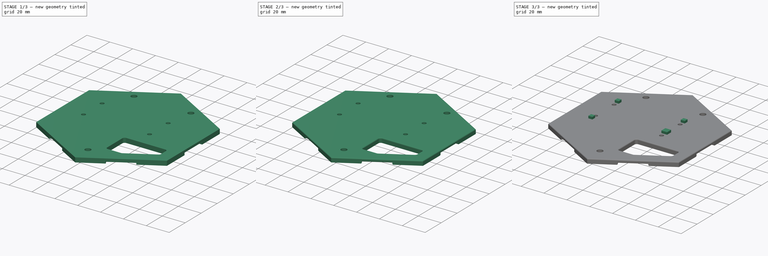
[diagram: build sequence overview — one tinted view per stage of 3, left to right]
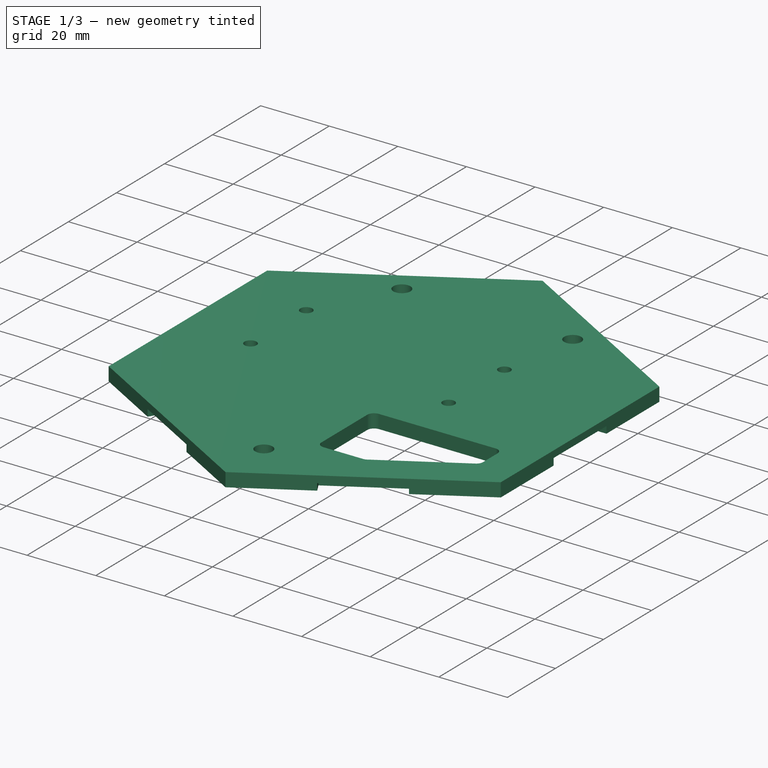
[diagram: stage 1 of 3 — iso view after this stage's code; geometry added in this stage tinted green]
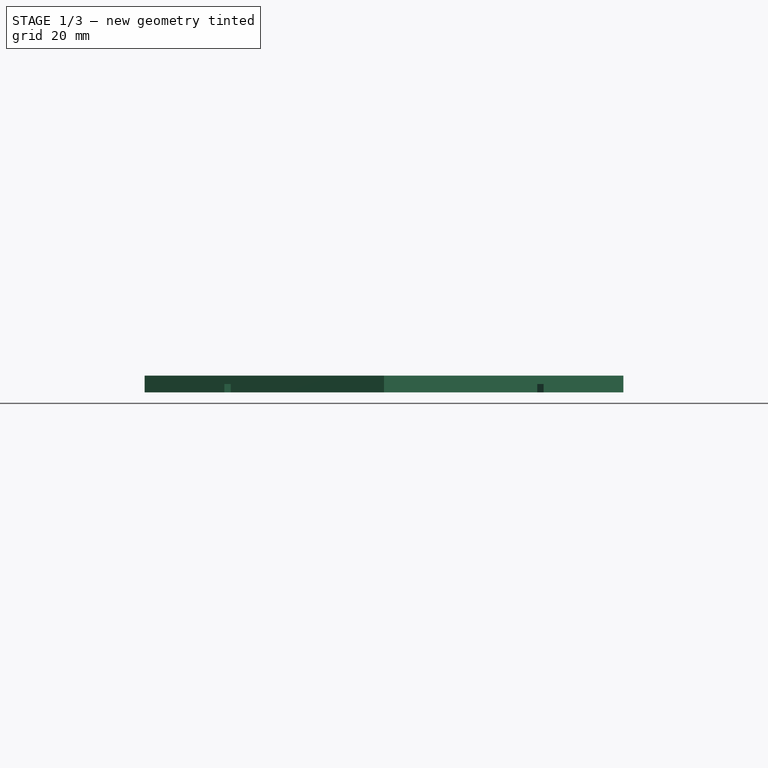
[diagram: stage 1 of 3 — front view after this stage's code; geometry added in this stage tinted green]
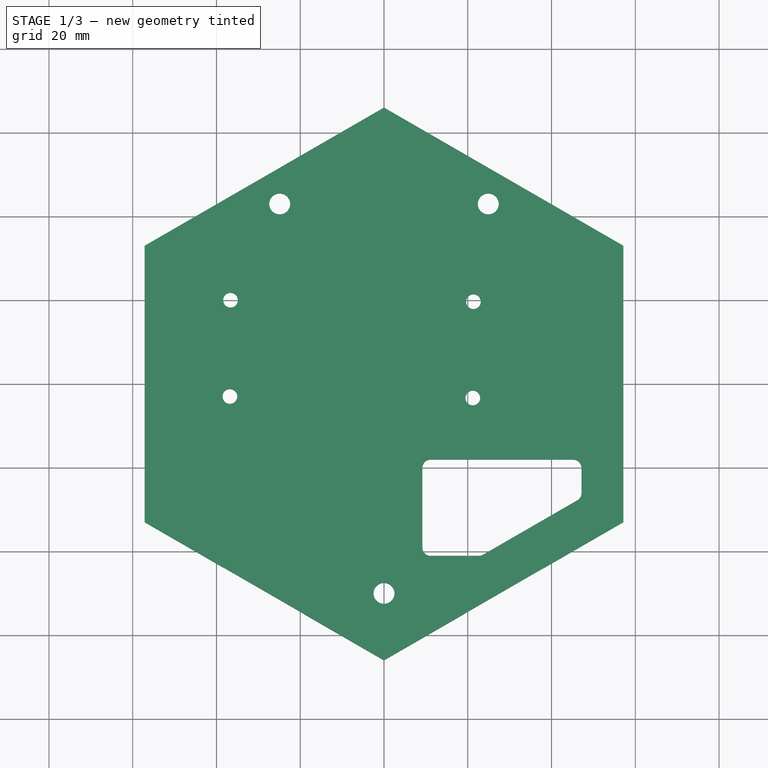
[diagram: stage 1 of 3 — top view after this stage's code; geometry added in this stage tinted green]
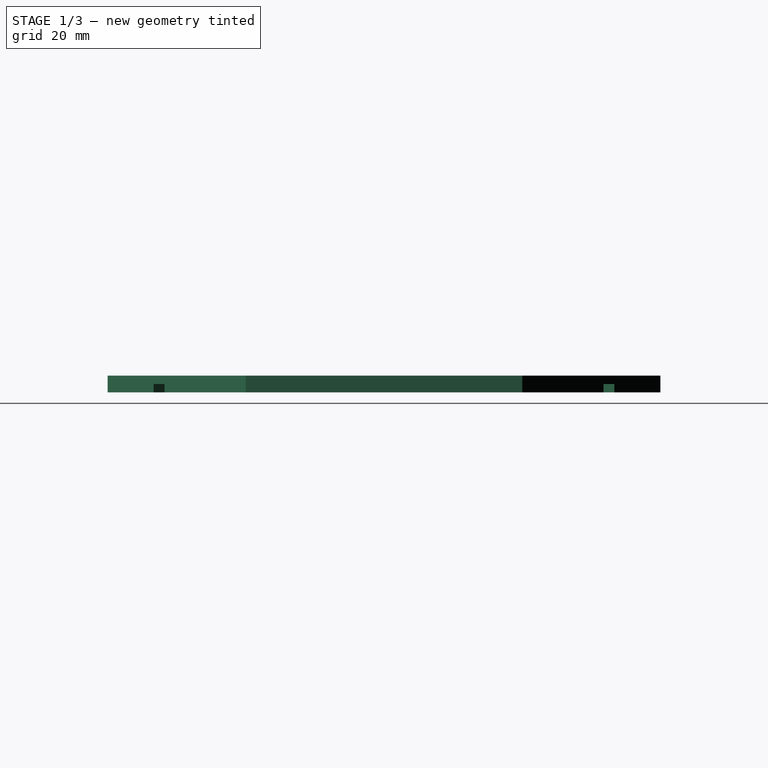
[diagram: stage 1 of 3 — right view after this stage's code; geometry added in this stage tinted green]
FCSTD DOCUMENT  (FreeCAD 0.20R)
Label: BaseOneSnap2HNuts_v2.11
License: All rights reserved
LicenseURL: http://en.wikipedia.org/wiki/All_rights_reserved
objects: Sketcher::SketchObject×3, PartDesign::Pad×2, PartDesign::Pocket×2, PartDesign::Fillet×1, Part::Part2DObjectPython×1, PartDesign::Body×1
note: 15 computed .brp shape members not serialized (recipe doc carries the construction recipe); baked Part::Feature solids carry a one-line shape summary decoded from their .brp

FEATURE [Sketcher::SketchObject] Sketch  label="backplate_Sketch"
  FullyConstrained = true
  MapMode = 5
  Support = -> [XY_Plane]
  expr: Constraints[21] = 115.3 - 1
  sketch-geometry (36):
    g0: LineSegment StartX=57.15 StartY=-32.9956 StartZ=0 EndX=57.15 EndY=32.9956 EndZ=0
    g1: LineSegment StartX=57.15 StartY=32.9956 StartZ=0 EndX=0 EndY=65.9911 EndZ=0
    g2: LineSegment StartX=0 StartY=65.9911 StartZ=0 EndX=-57.15 EndY=32.9956 EndZ=0
    g3: LineSegment StartX=-57.15 StartY=32.9956 StartZ=0 EndX=-57.15 EndY=-32.9956 EndZ=0
    g4: LineSegment StartX=-57.15 StartY=-32.9956 StartZ=0 EndX=0 EndY=-65.9911 EndZ=0
    g5: LineSegment StartX=0 StartY=-65.9911 StartZ=0 EndX=57.15 EndY=-32.9956 EndZ=0
    g6: Circle CenterX=0 CenterY=0 CenterZ=0 NormalX=0 NormalY=0 NormalZ=1 AngleXU=0 Radius=65.9911
    g7: LineSegment StartX=-57.15 StartY=32.9956 StartZ=0 EndX=0 EndY=-65.9911 EndZ=0
    g8: Circle CenterX=-24.9 CenterY=42.9911 CenterZ=0 NormalX=0 NormalY=0 NormalZ=1 AngleXU=0 Radius=2.5
    g9: Circle CenterX=24.9 CenterY=42.9911 CenterZ=0 NormalX=0 NormalY=0 NormalZ=1 AngleXU=0 Radius=2.5
    g10: Circle CenterX=0 CenterY=-50.0089 CenterZ=0 NormalX=0 NormalY=0 NormalZ=1 AngleXU=0 Radius=2.5
    g11: LineSegment StartX=-24.9 StartY=42.9911 StartZ=0 EndX=24.9 EndY=42.9911 EndZ=0
    g12: LineSegment StartX=9.15 StartY=-20.0577 StartZ=0 EndX=9.15 EndY=-39.0577 EndZ=0
    g13: LineSegment StartX=11.15 StartY=-41.0577 StartZ=0 EndX=22.65 EndY=-41.0577 EndZ=0
    g14: LineSegment StartX=23.65 StartY=-40.7898 StartZ=0 EndX=46.15 EndY=-27.7994 EndZ=0
    g15: LineSegment StartX=47.15 StartY=-26.0674 StartZ=0 EndX=47.15 EndY=-20.0577 EndZ=0
    g16: LineSegment StartX=45.15 StartY=-18.0577 StartZ=0 EndX=11.15 EndY=-18.0577 EndZ=0
    g17: LineSegment StartX=34.9 StartY=-34.2946 StartZ=0 EndX=39.9 EndY=-42.9549 EndZ=0
    g18: LineSegment StartX=47.15 StartY=-23.0626 StartZ=0 EndX=57.15 EndY=-23.0626 EndZ=0
    g19: ArcOfCircle CenterX=22.65 CenterY=-39.0577 CenterZ=0 NormalX=0 NormalY=0 NormalZ=1 AngleXU=0 Radius=2 StartAngle=4.71239 EndAngle=5.23599
    g20: ArcOfCircle CenterX=11.15 CenterY=-39.0577 CenterZ=0 NormalX=0 NormalY=0 NormalZ=1 AngleXU=0 Radius=2 StartAngle=3.14159 EndAngle=4.71239
    g21: ArcOfCircle CenterX=11.15 CenterY=-20.0577 CenterZ=0 NormalX=0 NormalY=0 NormalZ=1 AngleXU=0 Radius=2 StartAngle=1.5708 EndAngle=3.14159
    g22: ArcOfCircle CenterX=45.15 CenterY=-20.0577 CenterZ=0 NormalX=0 NormalY=0 NormalZ=1 AngleXU=0 Radius=2 StartAngle=0 EndAngle=1.5708
    g23: ArcOfCircle CenterX=45.15 CenterY=-26.0674 CenterZ=0 NormalX=0 NormalY=0 NormalZ=1 AngleXU=0 Radius=2 StartAngle=5.23599 EndAngle=6.28319
    g24: LineSegment StartX=11.15 StartY=-18.0577 StartZ=0 EndX=11.15 EndY=-20.0577 EndZ=0
    g25: LineSegment StartX=11.15 StartY=-39.0577 StartZ=0 EndX=11.15 EndY=-41.0577 EndZ=0
    g26: LineSegment StartX=47.15 StartY=-26.0674 StartZ=0 EndX=45.15 EndY=-26.0674 EndZ=0
    g27: LineSegment StartX=45.15 StartY=-20.0577 StartZ=0 EndX=45.15 EndY=-18.0577 EndZ=0
    g28: LineSegment StartX=22.65 StartY=-39.0577 StartZ=0 EndX=22.65 EndY=-41.0577 EndZ=0
    g29: Circle CenterX=-36.65 CenterY=19.9911 CenterZ=0 NormalX=0 NormalY=0 NormalZ=1 AngleXU=0 Radius=1.75
    g30: Circle CenterX=21.3489 CenterY=19.6311 CenterZ=0 NormalX=0 NormalY=0 NormalZ=1 AngleXU=0 Radius=1.75
    g31: LineSegment StartX=-36.65 StartY=19.9911 StartZ=0 EndX=21.3489 EndY=19.6311 EndZ=0
    g32: Circle CenterX=-36.7928 CenterY=-3.00842 CenterZ=0 NormalX=0 NormalY=0 NormalZ=1 AngleXU=0 Radius=1.75
    g33: LineSegment StartX=-36.65 StartY=19.9911 StartZ=0 EndX=-36.7928 EndY=-3.00842 EndZ=0
    g34: Circle CenterX=21.2061 CenterY=-3.36842 CenterZ=0 NormalX=0 NormalY=0 NormalZ=1 AngleXU=0 Radius=1.75
    g35: LineSegment StartX=-36.7928 StartY=-3.00842 StartZ=0 EndX=21.2061 EndY=-3.36842 EndZ=0
  constraints (87):
    c: Coincident(g0,g1)
    c: Coincident(g1,g2)
    c: Coincident(g2,g3)
    c: Coincident(g3,g4)
    c: Coincident(g4,g5)
    c: Coincident(g5,g0)
    c: Equal(g0, g1-g5) x5
    c: PointOnObject(g0,g6)
    c: PointOnObject(g1,g6)
    c: PointOnObject(g2,g6)
    c: PointOnObject(g3,g6)
    c: PointOnObject(g4,g6)
    c: PointOnObject(g5,g6)
    c: Coincident(g6,g-1)
    c: PointOnObject(g4,g-2)
    c: Coincident(g7,g2)
    c: Coincident(g7,g4)
    c: Distance(g7) = 114.3
    c: PointOnObject(g10,g-2)
    c: Equal(g8,g10)
    c: Equal(g8,g9)
    c: Diameter(g8) = 5
    c: DistanceY(g9,g1) = 23
    c: Coincident(g11,g8)
    c: Coincident(g11,g9)
    c: DistanceY(g10,g9) = 93
    c: DistanceX(g8,g9) = 49.8
    c: Symmetric(g8,g9,g-2)
    c: Vertical(g12)
    c: Horizontal(g13)
    c: Vertical(g15)
    c: Horizontal(g16)
    c: Parallel(g14,g5)
    c: PointOnObject(g17,g5)
    c: Perpendicular(g5,g17)
    c: Distance(g17) = 10
    c: PointOnObject(g18,g0)
    c: Horizontal(g18)
    c: DistanceX(g18,g18) = 10
    c: Tangent(g14,g19) = -1.5708
    c: Tangent(g13,g19) = -1.5708
    c: Tangent(g13,g20) = -1.5708
    c: Tangent(g12,g20) = -1.5708
    c: Tangent(g12,g21) = -1.5708
    c: Tangent(g16,g21) = -1.5708
    c: Tangent(g16,g22) = -1.5708
    c: Tangent(g15,g22) = -1.5708
    c: Tangent(g15,g23) = -1.5708
    c: Tangent(g14,g23) = -1.5708
    c: Coincident(g24,g16)
    c: Coincident(g24,g21)
    c: Coincident(g25,g20)
    c: Coincident(g25,g13)
    c: Coincident(g26,g15)
    c: Coincident(g26,g23)
    c: Coincident(g27,g22)
    c: Coincident(g27,g16)
    c: Equal(g26,g27)
    c: Equal(g27,g25)
    c: Equal(g25,g24)
    c: Distance(g24) = 2
    c: DistanceY(g13,g16) = 23
    c: DistanceX(g12,g15) = 38
    c: Coincident(g28,g19)
    c: Coincident(g28,g13)
    c: Equal(g28,g25)
    c: DistanceX(g13,g13) = 11.5
    c: Symmetric(g14,g14,g17)
    c: Symmetric(g15,g15,g18)
    c: Diameter(g29) = 3.5
    c: DistanceX(g2,g29) = 20.5
    c: DistanceY(g29,g1) = 46
    c: Diameter(g30) = 3.5
    c: Coincident(g29,g31)
    c: Coincident(g30,g31)
    c: Distance(g31) = 58
    c: Angle(g31) = -0.00620691
    c: Diameter(g32) = 3.5
    c: Coincident(g29,g33)
    c: Coincident(g32,g33)
    c: Distance(g33) = 23
    c: Perpendicular(g33,g31)
    c: Diameter(g34) = 3.5
    c: Coincident(g32,g35)
    c: Coincident(g34,g35)
    c: Equal(g31,g35)
    c: Parallel(g35,g31)
FEATURE [PartDesign::Pad] Pad  label="backplate_Pad"
  Direction = (0,0,1)
  Length = 4
  Length2 = 10
  Profile = -> Sketch
  Type = 0
FEATURE [Sketcher::SketchObject] Sketch001  label="rear_engraving_Sketch"
  ExternalGeometry = -> [Pad,Sketch]
  FullyConstrained = true
  MapMode = 5
  Placement = pos=(0,0,0) rot=(1,0,0;3.14159rad)
  Support = -> [Pad]
  sketch-geometry (113):
    g0: LineSegment StartX=-57.15 StartY=-11 StartZ=0 EndX=-54.15 EndY=-11 EndZ=0
    g1: LineSegment StartX=-54.15 StartY=-11 StartZ=0 EndX=-54.15 EndY=11 EndZ=0
    g2: LineSegment StartX=-54.15 StartY=11 StartZ=0 EndX=-57.15 EndY=11 EndZ=0
    g3: LineSegment StartX=-57.15 StartY=11 StartZ=0 EndX=-57.15 EndY=-11 EndZ=0
    g4: LineSegment StartX=54.15 StartY=-11 StartZ=0 EndX=57.15 EndY=-11 EndZ=0
    g5: LineSegment StartX=57.15 StartY=-11 StartZ=0 EndX=57.15 EndY=11 EndZ=0
    g6: LineSegment StartX=57.15 StartY=11 StartZ=0 EndX=54.15 EndY=11 EndZ=0
    g7: LineSegment StartX=54.15 StartY=11 StartZ=0 EndX=54.15 EndY=-11 EndZ=0
    g8: LineSegment StartX=36.6013 StartY=41.3953 StartZ=0 EndX=38.1013 EndY=43.9934 EndZ=0
    g9: LineSegment StartX=38.1013 StartY=43.9934 StartZ=0 EndX=19.0487 EndY=54.9934 EndZ=0
    g10: LineSegment StartX=19.0487 StartY=54.9934 StartZ=0 EndX=17.5487 EndY=52.3953 EndZ=0
    g11: LineSegment StartX=17.5487 StartY=52.3953 StartZ=0 EndX=36.6013 EndY=41.3953 EndZ=0
    g12: LineSegment StartX=0 StartY=65.9911 StartZ=0 EndX=19.0487 EndY=54.9934 EndZ=0
    g13: LineSegment StartX=38.1013 StartY=43.9934 StartZ=0 EndX=57.15 EndY=32.9956 EndZ=0
    g14: LineSegment StartX=-38.1013 StartY=43.9934 StartZ=0 EndX=-19.0487 EndY=54.9934 EndZ=0
    g15: LineSegment StartX=-19.0487 StartY=54.9934 StartZ=0 EndX=-17.5487 EndY=52.3953 EndZ=0
    g16: LineSegment StartX=-17.5487 StartY=52.3953 StartZ=0 EndX=-36.6013 EndY=41.3953 EndZ=0
    g17: LineSegment StartX=-36.6013 StartY=41.3953 StartZ=0 EndX=-38.1013 EndY=43.9934 EndZ=0
    g18: LineSegment StartX=-38.1013 StartY=-43.9934 StartZ=0 EndX=-19.0487 EndY=-54.9934 EndZ=0
    g19: LineSegment StartX=-19.0487 StartY=-54.9934 StartZ=0 EndX=-17.5487 EndY=-52.3953 EndZ=0
    g20: LineSegment StartX=-17.5487 StartY=-52.3953 StartZ=0 EndX=-36.6013 EndY=-41.3953 EndZ=0
    g21: LineSegment StartX=-36.6013 StartY=-41.3953 StartZ=0 EndX=-38.1013 EndY=-43.9934 EndZ=0
    g22: LineSegment StartX=19.0487 StartY=-54.9934 StartZ=0 EndX=38.1013 EndY=-43.9934 EndZ=0
    g23: LineSegment StartX=38.1013 StartY=-43.9934 StartZ=0 EndX=36.6013 EndY=-41.3953 EndZ=0
    g24: LineSegment StartX=36.6013 StartY=-41.3953 StartZ=0 EndX=17.5487 EndY=-52.3953 EndZ=0
    g25: LineSegment StartX=17.5487 StartY=-52.3953 StartZ=0 EndX=19.0487 EndY=-54.9934 EndZ=0
    g26: LineSegment StartX=-57.15 StartY=-32.9956 StartZ=0 EndX=-38.1013 EndY=-43.9934 EndZ=0
    g27: LineSegment StartX=-19.0487 StartY=-54.9934 StartZ=0 EndX=-7.1e-15 EndY=-65.9911 EndZ=0
    g28: LineSegment StartX=-7.1e-15 StartY=-65.9911 StartZ=0 EndX=19.0487 EndY=-54.9934 EndZ=0
    g29: LineSegment StartX=38.1013 StartY=-43.9934 StartZ=0 EndX=57.15 EndY=-32.9956 EndZ=0
    g30: LineSegment StartX=-57.15 StartY=32.9956 StartZ=0 EndX=-38.1013 EndY=43.9934 EndZ=0
    g31: LineSegment StartX=-19.0487 StartY=54.9934 StartZ=0 EndX=0 EndY=65.9911 EndZ=0
    g32: LineSegment StartX=17 StartY=-48.4911 StartZ=0 EndX=14 EndY=-40.4911 EndZ=0
    g33: LineSegment StartX=14 StartY=-40.4911 StartZ=0 EndX=12 EndY=-40.4911 EndZ=0
    g34: LineSegment StartX=12 StartY=-40.4911 StartZ=0 EndX=10 EndY=-45.8245 EndZ=0
    g35: LineSegment StartX=10 StartY=-45.8245 StartZ=0 EndX=8 EndY=-40.4911 EndZ=0
    g36: LineSegment StartX=8 StartY=-40.4911 StartZ=0 EndX=6 EndY=-40.4911 EndZ=0
    g37: LineSegment StartX=6 StartY=-40.4911 StartZ=0 EndX=3 EndY=-48.4911 EndZ=0
    g38: LineSegment StartX=3 StartY=-48.4911 StartZ=0 EndX=5 EndY=-48.4911 EndZ=0
    g39: LineSegment StartX=5 StartY=-48.4911 StartZ=0 EndX=7 EndY=-43.1578 EndZ=0
    g40: LineSegment StartX=7 StartY=-43.1578 StartZ=0 EndX=9 EndY=-48.4911 EndZ=0
    g41: LineSegment StartX=9 StartY=-48.4911 StartZ=0 EndX=11 EndY=-48.4911 EndZ=0
    g42: LineSegment StartX=11 StartY=-48.4911 StartZ=0 EndX=13 EndY=-43.1578 EndZ=0
    g43: LineSegment StartX=13 StartY=-43.1578 StartZ=0 EndX=15 EndY=-48.4911 EndZ=0
    g44: LineSegment StartX=15 StartY=-48.4911 StartZ=0 EndX=17 EndY=-48.4911 EndZ=0
    g45: LineSegment StartX=4 StartY=-40.4911 StartZ=0 EndX=1 EndY=-48.4911 EndZ=0
    g46: LineSegment StartX=1 StartY=-48.4911 StartZ=0 EndX=-1 EndY=-48.4911 EndZ=0
    g47: LineSegment StartX=-1 StartY=-48.4911 StartZ=0 EndX=-4 EndY=-40.4911 EndZ=0
    g48: LineSegment StartX=-4 StartY=-40.4911 StartZ=0 EndX=-2 EndY=-40.4911 EndZ=0
    g49: LineSegment StartX=-2 StartY=-40.4911 StartZ=0 EndX=-1.47331 EndY=-41.8956 EndZ=0
    g50: LineSegment StartX=-1.47331 StartY=-41.8956 StartZ=0 EndX=1.47331 EndY=-41.8956 EndZ=0
    g51: LineSegment StartX=1.47331 StartY=-41.8956 StartZ=0 EndX=2 EndY=-40.4911 EndZ=0
    g52: LineSegment StartX=2 StartY=-40.4911 StartZ=0 EndX=4 EndY=-40.4911 EndZ=0
    g53: LineSegment StartX=0 StartY=-45.8245 StartZ=0 EndX=0.723315 EndY=-43.8956 EndZ=0
    g54: LineSegment StartX=0.723315 StartY=-43.8956 StartZ=0 EndX=-0.723315 EndY=-43.8956 EndZ=0
    g55: LineSegment StartX=-0.723315 StartY=-43.8956 StartZ=0 EndX=0 EndY=-45.8245 EndZ=0
    g56: LineSegment StartX=-6 StartY=-48.4911 StartZ=0 EndX=-6 EndY=-40.4911 EndZ=0
    g57: LineSegment StartX=-6 StartY=-40.4911 StartZ=0 EndX=-11.5 EndY=-40.4911 EndZ=0
    g58: LineSegment StartX=-11.5 StartY=-40.4911 StartZ=0 EndX=-11.5 EndY=-42.4911 EndZ=0
    g59: LineSegment StartX=-11.5 StartY=-42.4911 StartZ=0 EndX=-8 EndY=-42.4911 EndZ=0
    g60: LineSegment StartX=-8 StartY=-42.4911 StartZ=0 EndX=-8 EndY=-48.4911 EndZ=0
    g61: LineSegment StartX=-8 StartY=-48.4911 StartZ=0 EndX=-6 EndY=-48.4911 EndZ=0
    g62: LineSegment StartX=3 StartY=-48.4911 StartZ=0 EndX=1 EndY=-48.4911 EndZ=0
    g63: LineSegment StartX=-4 StartY=-40.4911 StartZ=0 EndX=-6 EndY=-40.4911 EndZ=0
    g64: LineSegment StartX=-13.5 StartY=-48.4911 StartZ=0 EndX=-13.5 EndY=-40.4911 EndZ=0
    g65: LineSegment StartX=-13.5 StartY=-40.4911 StartZ=0 EndX=-19 EndY=-40.4911 EndZ=0
    g66: LineSegment StartX=-19 StartY=-40.4911 StartZ=0 EndX=-19 EndY=-42.4911 EndZ=0
    g67: LineSegment StartX=-19 StartY=-42.4911 StartZ=0 EndX=-15.5 EndY=-42.4911 EndZ=0
    g68: LineSegment StartX=-15.5 StartY=-42.4911 StartZ=0 EndX=-15.5 EndY=-48.4911 EndZ=0
    g69: LineSegment StartX=-15.5 StartY=-48.4911 StartZ=0 EndX=-13.5 EndY=-48.4911 EndZ=0
    g70: LineSegment StartX=-11.5 StartY=-40.4911 StartZ=0 EndX=-13.5 EndY=-40.4911 EndZ=0
    g71: LineSegment StartX=15 StartY=-48.4911 StartZ=0 EndX=11 EndY=-48.4911 EndZ=0
    g72: LineSegment StartX=12 StartY=-40.4911 StartZ=0 EndX=8 EndY=-40.4911 EndZ=0
    g73: LineSegment StartX=9 StartY=-48.4911 StartZ=0 EndX=5 EndY=-48.4911 EndZ=0
    g74: LineSegment StartX=24.9 StartY=-42.9911 StartZ=0 EndX=24.9 EndY=-40.4911 EndZ=0
    g75: LineSegment StartX=0.723315 StartY=-43.8956 StartZ=0 EndX=0.723315 EndY=-41.8956 EndZ=0
    g76: LineSegment StartX=10 StartY=-45.8245 StartZ=0 EndX=10 EndY=-40.4911 EndZ=0
    g77: LineSegment StartX=8.75342 StartY=-42.5003 StartZ=0 EndX=7 EndY=-43.1578 EndZ=0
    g78: LineSegment StartX=13 StartY=-43.1578 StartZ=0 EndX=11.2466 EndY=-42.5003 EndZ=0
    g79: LineSegment StartX=14.7534 StartY=-42.5003 StartZ=0 EndX=13 EndY=-43.1578 EndZ=0
    g80: LineSegment StartX=7 StartY=-43.1578 StartZ=0 EndX=5.24658 EndY=-42.5003 EndZ=0
    g81: LineSegment StartX=-35.2628 StartY=5.65842 StartZ=0 EndX=-38.3227 EndY=5.65842 EndZ=0
    g82: LineSegment StartX=-38.3227 StartY=5.65842 StartZ=0 EndX=-39.8527 EndY=3.00842 EndZ=0
    g83: LineSegment StartX=-39.8527 StartY=3.00842 StartZ=0 EndX=-38.3227 EndY=0.358421 EndZ=0
    g84: LineSegment StartX=-38.3227 StartY=0.358421 StartZ=0 EndX=-35.2628 EndY=0.358421 EndZ=0
    g85: LineSegment StartX=-35.2628 StartY=0.358421 StartZ=0 EndX=-33.7328 EndY=3.00842 EndZ=0
    g86: LineSegment StartX=-33.7328 StartY=3.00842 StartZ=0 EndX=-35.2628 EndY=5.65842 EndZ=0
    g87: Circle CenterX=-36.7928 CenterY=3.00842 CenterZ=0 NormalX=0 NormalY=0 NormalZ=1 AngleXU=0 Radius=3.05996
    g88: LineSegment StartX=18.1462 StartY=3.36842 StartZ=0 EndX=19.6761 EndY=0.71842 EndZ=0
    g89: LineSegment StartX=19.6761 StartY=0.71842 StartZ=0 EndX=22.7361 EndY=0.71842 EndZ=0
    g90: LineSegment StartX=22.7361 StartY=0.71842 StartZ=0 EndX=24.2661 EndY=3.36842 EndZ=0
    g91: LineSegment StartX=24.2661 StartY=3.36842 StartZ=0 EndX=22.7361 EndY=6.01842 EndZ=0
    g92: LineSegment StartX=22.7361 StartY=6.01842 StartZ=0 EndX=19.6761 EndY=6.01842 EndZ=0
    g93: LineSegment StartX=19.6761 StartY=6.01842 StartZ=0 EndX=18.1462 EndY=3.36842 EndZ=0
    g94: Circle CenterX=21.2061 CenterY=3.36842 CenterZ=0 NormalX=0 NormalY=0 NormalZ=1 AngleXU=0 Radius=3.05996
    g95: LineSegment StartX=18.2889 StartY=-19.6311 StartZ=0 EndX=19.8189 EndY=-22.2811 EndZ=0
    g96: LineSegment StartX=19.8189 StartY=-22.2811 StartZ=0 EndX=22.8789 EndY=-22.2811 EndZ=0
    g97: LineSegment StartX=22.8789 StartY=-22.2811 StartZ=0 EndX=24.4088 EndY=-19.6311 EndZ=0
    g98: LineSegment StartX=24.4088 StartY=-19.6311 StartZ=0 EndX=22.8789 EndY=-16.9811 EndZ=0
    g99: LineSegment StartX=22.8789 StartY=-16.9811 StartZ=0 EndX=19.8189 EndY=-16.9811 EndZ=0
    g100: LineSegment StartX=19.8189 StartY=-16.9811 StartZ=0 EndX=18.2889 EndY=-19.6311 EndZ=0
    g101: Circle CenterX=21.3489 CenterY=-19.6311 CenterZ=0 NormalX=0 NormalY=0 NormalZ=1 AngleXU=0 Radius=3.05996
    g102: LineSegment StartX=-39.71 StartY=-19.9911 StartZ=0 EndX=-38.18 EndY=-22.6411 EndZ=0
    g103: LineSegment StartX=-38.18 StartY=-22.6411 StartZ=0 EndX=-35.12 EndY=-22.6411 EndZ=0
    g104: LineSegment StartX=-35.12 StartY=-22.6411 StartZ=0 EndX=-33.59 EndY=-19.9911 EndZ=0
    g105: LineSegment StartX=-33.59 StartY=-19.9911 StartZ=0 EndX=-35.12 EndY=-17.3411 EndZ=0
    g106: LineSegment StartX=-35.12 StartY=-17.3411 StartZ=0 EndX=-38.18 EndY=-17.3411 EndZ=0
    g107: LineSegment StartX=-38.18 StartY=-17.3411 StartZ=0 EndX=-39.71 EndY=-19.9911 EndZ=0
    g108: Circle CenterX=-36.65 CenterY=-19.9911 CenterZ=0 NormalX=0 NormalY=0 NormalZ=1 AngleXU=0 Radius=3.05996
    g109: LineSegment StartX=-39.71 StartY=-19.9911 StartZ=0 EndX=-35.12 EndY=-17.3411 EndZ=0
    g110: LineSegment StartX=-38.3227 StartY=0.358421 StartZ=0 EndX=-33.7328 EndY=3.00842 EndZ=0
    g111: LineSegment StartX=19.6761 StartY=0.71842 StartZ=0 EndX=24.2661 EndY=3.36842 EndZ=0
    g112: LineSegment StartX=19.8189 StartY=-22.2811 StartZ=0 EndX=24.4088 EndY=-19.6311 EndZ=0
  constraints (297):
    c: Coincident(g0,g1)
    c: Coincident(g1,g2)
    c: Coincident(g2,g3)
    c: Coincident(g3,g0)
    c: Horizontal(g0)
    c: Horizontal(g2)
    c: Vertical(g3)
    c: PointOnObject(g0,g-4)
    c: Symmetric(g1,g0,g-1)
    c: DistanceX(g2,g2) = 3
    c: DistanceY(g1,g1) = 22
    c: Coincident(g4,g5)
    c: Coincident(g5,g6)
    c: Coincident(g6,g7)
    c: Coincident(g7,g4)
    c: Horizontal(g4)
    c: Horizontal(g6)
    c: Vertical(g7)
    c: Equal(g2,g6) = 3
    c: Equal(g1,g5) = 22
    c: PointOnObject(g4,g-7)
    c: Symmetric(g4,g5,g-1)
    c: Coincident(g8,g9)
    c: Coincident(g9,g10)
    c: Coincident(g10,g11)
    c: PointOnObject(g8,g-5)
    c: PointOnObject(g9,g-5)
    c: Coincident(g11,g8)
    c: Parallel(g9,g11)
    c: Parallel(g10,g8)
    c: Perpendicular(g-5,g10)
    c: Coincident(g12,g-6)
    c: Coincident(g12,g9)
    c: Coincident(g13,g8)
    c: Coincident(g13,g-7)
    c: Equal(g13,g12)
    c: Equal(g11,g7)
    c: Equal(g8,g6)
    c: PointOnObject(g14,g-6)
    c: PointOnObject(g14,g-6)
    c: Coincident(g14,g15)
    c: Coincident(g15,g16)
    c: Coincident(g16,g17)
    c: Coincident(g17,g14)
    c: PointOnObject(g18,g-3)
    c: PointOnObject(g18,g-3)
    c: Coincident(g18,g19)
    c: Coincident(g19,g20)
    c: Coincident(g20,g21)
    c: Coincident(g21,g18)
    c: PointOnObject(g22,g-8)
    c: PointOnObject(g22,g-8)
    c: Coincident(g22,g23)
    c: Coincident(g23,g24)
    c: Coincident(g24,g25)
    c: Coincident(g25,g22)
    c: Coincident(g26,g-4)
    c: Coincident(g26,g18)
    c: Coincident(g27,g18)
    c: Coincident(g27,g-8)
    c: Coincident(g28,g27)
    c: Coincident(g28,g22)
    c: Coincident(g29,g22)
    c: Coincident(g29,g-8)
    c: Coincident(g30,g-6)
    c: Coincident(g30,g14)
    c: Coincident(g31,g14)
    c: Coincident(g31,g12)
    c: Equal(g31,g30)
    c: Equal(g26,g27)
    c: Equal(g28,g29)
    c: Equal(g11,g16)
    c: Equal(g15,g10)
    c: Parallel(g17,g15)
    c: Parallel(g14,g16)
    c: Perpendicular(g15,g14)
    c: Parallel(g21,g19)
    c: Parallel(g20,g18)
    c: Perpendicular(g27,g19)
    c: Perpendicular(g28,g25)
    c: Parallel(g23,g25)
    c: Parallel(g24,g22)
    c: Equal(g0,g21)
    c: Equal(g19,g25)
    c: Equal(g20,g24)
    c: Equal(g24,g7)
    c: Coincident(g32,g33)
    c: Horizontal(g33)
    c: Coincident(g33,g34)
    c: Coincident(g34,g35)
    c: Coincident(g35,g36)
    c: Coincident(g36,g37)
    c: Coincident(g37,g38)
    c: Horizontal(g38)
    c: Coincident(g38,g39)
    c: Coincident(g39,g40)
    c: Coincident(g40,g41)
    c: Horizontal(g41)
    c: Coincident(g41,g42)
    c: Coincident(g42,g43)
    c: Coincident(g43,g44)
    c: Coincident(g44,g32)
    c: Coincident(g45,g46)
    c: Coincident(g46,g47)
    c: Coincident(g47,g48)
    c: Horizontal(g48)
    c: Coincident(g48,g49)
    c: Coincident(g49,g50)
    c: Coincident(g50,g51)
    c: Coincident(g51,g52)
    c: Coincident(g52,g45)
    c: Coincident(g53,g54)
    c: Coincident(g54,g55)
    c: Coincident(g55,g53)
    c: Vertical(g56)
    c: Coincident(g56,g57)
    c: Horizontal(g57)
    c: Coincident(g57,g58)
    c: Vertical(g58)
    c: Coincident(g58,g59)
    c: Horizontal(g59)
    c: Coincident(g59,g60)
    c: Coincident(g60,g61)
    c: Coincident(g61,g56)
    c: Horizontal(g44)
    c: Horizontal(g36)
    c: Horizontal(g52)
    c: Horizontal(g46)
    c: Horizontal(g61)
    c: Horizontal(g54)
    c: Vertical(g60)
    c: Parallel(g32,g43)
    c: Parallel(g39,g37)
    c: Parallel(g35,g40)
    c: Parallel(g42,g34)
    c: Parallel(g45,g51)
    c: Parallel(g51,g53)
    c: Parallel(g55,g49)
    c: Parallel(g49,g47)
    c: PointOnObject(g43,g41)
    c: PointOnObject(g38,g41)
    c: PointOnObject(g45,g38)
    c: PointOnObject(g56,g38)
    c: PointOnObject(g33,g36)
    c: PointOnObject(g45,g36)
    c: PointOnObject(g48,g52)
    c: PointOnObject(g56,g48)
    c: Equal(g44,g33)
    c: Equal(g33,g41)
    c: Equal(g41,g36)
    c: Equal(g36,g38)
    c: Equal(g38,g52)
    c: Equal(g52,g48)
    c: Equal(g48,g46)
    c: Equal(g46,g61)
    c: Equal(g61,g58)
    c: Distance(g44) = 2
    c: Coincident(g62,g37)
    c: Coincident(g62,g45)
    c: Coincident(g63,g47)
    c: Coincident(g63,g56)
    c: Vertical(g64)
    c: Coincident(g64,g65)
    c: Horizontal(g65)
    c: Coincident(g65,g66)
    c: Vertical(g66)
    c: Coincident(g66,g67)
    c: Horizontal(g67)
    c: Coincident(g67,g68)
    c: Coincident(g68,g69)
    c: Coincident(g69,g64)
    c: Horizontal(g69)
    c: Vertical(g68)
    c: Equal(g69,g66)
    c: Coincident(g70,g57)
    c: Coincident(g70,g64)
    c: Horizontal(g70)
    c: Equal(g63,g70)
    c: Equal(g70,g62)
    c: Coincident(g71,g43)
    c: Coincident(g71,g41)
    c: Coincident(g72,g33)
    c: Coincident(g72,g35)
    c: Coincident(g73,g40)
    c: Coincident(g73,g38)
    c: Equal(g73,g71)
    c: Equal(g71,g72)
    c: Parallel(g37,g45)
    c: PointOnObject(g53,g51)
    c: PointOnObject(g54,g49)
    c: Equal(g58,g66)
    c: PointOnObject(g64,g61)
    c: DistanceY(g32,g32) = 8
    c: Equal(g57,g65)
    c: PointOnObject(g53,g-2)
    c: Symmetric(g49,g50,g-2)
    c: Coincident(g74,g-9)
    c: PointOnObject(g74,g-9)
    c: Vertical(g74)
    c: PointOnObject(g74,g33)
    c: Coincident(g75,g53)
    c: PointOnObject(g75,g50)
    c: Vertical(g75)
    c: Equal(g75,g52)
    c: Parallel(g34,g37)
    c: Coincident(g76,g34)
    c: Vertical(g76)
    c: Symmetric(g35,g33,g76)
    c: DistanceX(g62,g62) = 2
    c: PointOnObject(g77,g35)
    c: PointOnObject(g78,g34)
    c: PointOnObject(g79,g32)
    c: PointOnObject(g80,g37)
    c: Equal(g77,g78)
    c: Equal(g78,g80)
    c: Perpendicular(g32,g79)
    c: Perpendicular(g39,g80)
    c: Perpendicular(g40,g77)
    c: Coincident(g78,g42)
    c: Coincident(g79,g42)
    c: Coincident(g77,g39)
    c: Coincident(g80,g39)
    c: DistanceX(g73,g73) = 4
    c: Distance(g59) = 3.5
    c: Distance(g51) = 1.5
    c: Coincident(g81,g82)
    c: Coincident(g82,g83)
    c: Coincident(g83,g84)
    c: Coincident(g84,g85)
    c: Coincident(g85,g86)
    c: Coincident(g86,g81)
    c: Equal(g81, g82-g86) x5
    c: PointOnObject(g81,g87)
    c: PointOnObject(g82,g87)
    c: PointOnObject(g83,g87)
    c: PointOnObject(g84,g87)
    c: PointOnObject(g85,g87)
    c: PointOnObject(g86,g87)
    c: Coincident(g87,g-10)
    c: Horizontal(g81)
    c: Coincident(g88,g89)
    c: Coincident(g89,g90)
    c: Coincident(g90,g91)
    c: Coincident(g91,g92)
    c: Coincident(g92,g93)
    c: Coincident(g93,g88)
    c: Equal(g88, g89-g93) x5
    c: PointOnObject(g88,g94)
    c: PointOnObject(g89,g94)
    c: PointOnObject(g90,g94)
    c: PointOnObject(g91,g94)
    c: PointOnObject(g92,g94)
    c: PointOnObject(g93,g94)
    c: Coincident(g94,g-13)
    c: Coincident(g95,g96)
    c: Coincident(g96,g97)
    c: Coincident(g97,g98)
    c: Coincident(g98,g99)
    c: Coincident(g99,g100)
    c: Coincident(g100,g95)
    c: Equal(g95, g96-g100) x5
    c: PointOnObject(g95,g101)
    c: PointOnObject(g96,g101)
    c: PointOnObject(g97,g101)
    c: PointOnObject(g98,g101)
    c: PointOnObject(g99,g101)
    c: PointOnObject(g100,g101)
    c: Coincident(g101,g-12)
    c: Coincident(g102,g103)
    c: Coincident(g103,g104)
    c: Coincident(g104,g105)
    c: Coincident(g105,g106)
    c: Coincident(g106,g107)
    c: Coincident(g107,g102)
    c: Equal(g102, g103-g107) x5
    c: PointOnObject(g102,g108)
    c: PointOnObject(g103,g108)
    c: PointOnObject(g104,g108)
    c: PointOnObject(g105,g108)
    c: PointOnObject(g106,g108)
    c: PointOnObject(g107,g108)
    c: Coincident(g108,g-11)
    c: Horizontal(g106)
    c: Horizontal(g99)
    c: Horizontal(g92)
    c: Coincident(g109,g102)
    c: Coincident(g109,g105)
    c: Coincident(g110,g83)
    c: Coincident(g111,g88)
    c: Equal(g110,g109)
    c: Equal(g109,g111)
    c: Equal(g111,g112)
    c: Coincident(g110,g85)
    c: Coincident(g112,g97)
    c: Coincident(g112,g95)
    c: Coincident(g111,g90)
    c: Distance(g110) = 5.3
FEATURE [PartDesign::Pocket] Pocket  label="Pocket_for_features"
  BaseFeature = -> Pad
  Direction = (1,1,1)
  Length = 2
  Length2 = 5
  Profile = -> Sketch001
  Type = 0
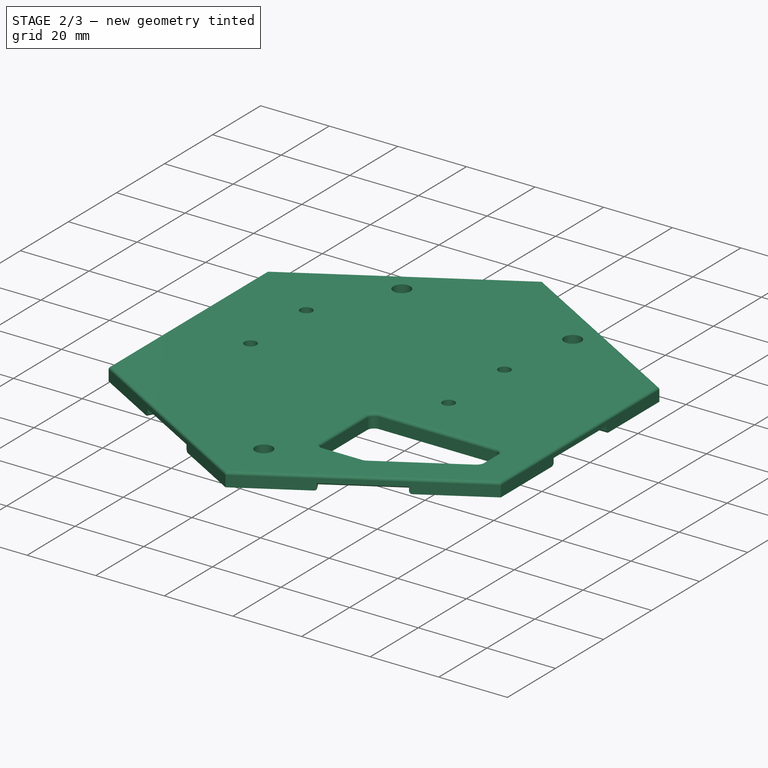
[diagram: stage 2 of 3 — iso view after this stage's code; geometry added in this stage tinted green]
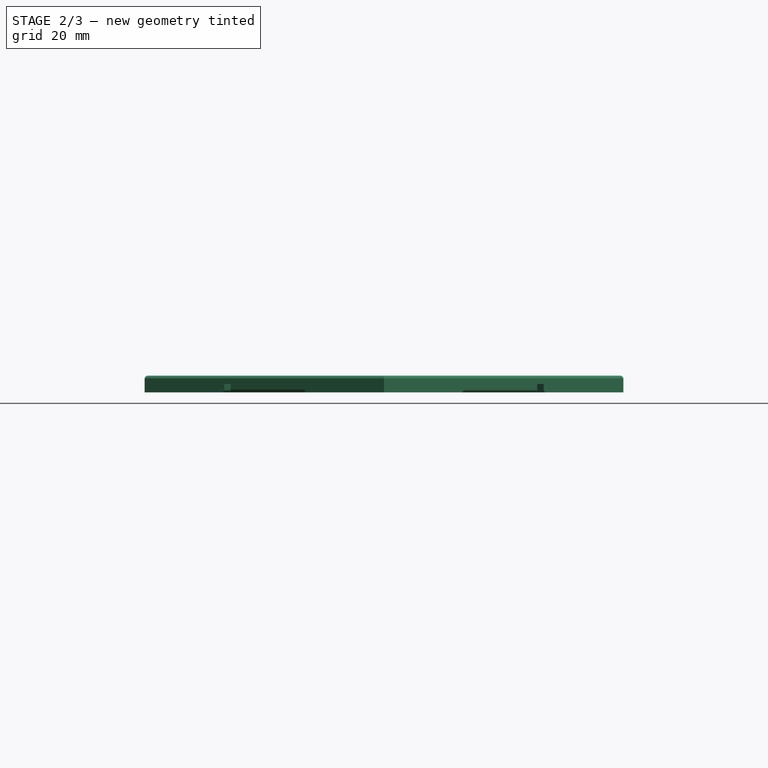
[diagram: stage 2 of 3 — front view after this stage's code; geometry added in this stage tinted green]
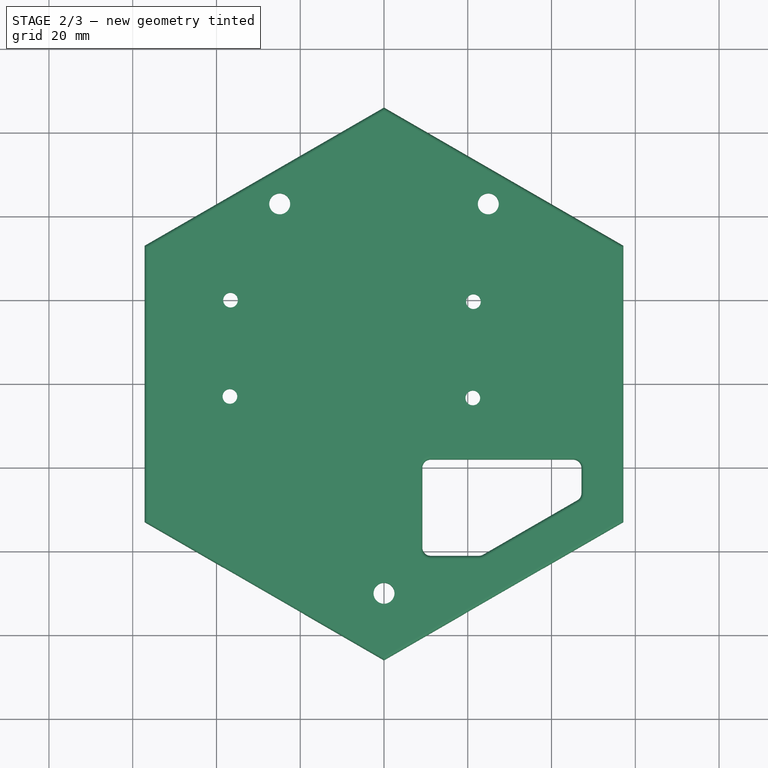
[diagram: stage 2 of 3 — top view after this stage's code; geometry added in this stage tinted green]
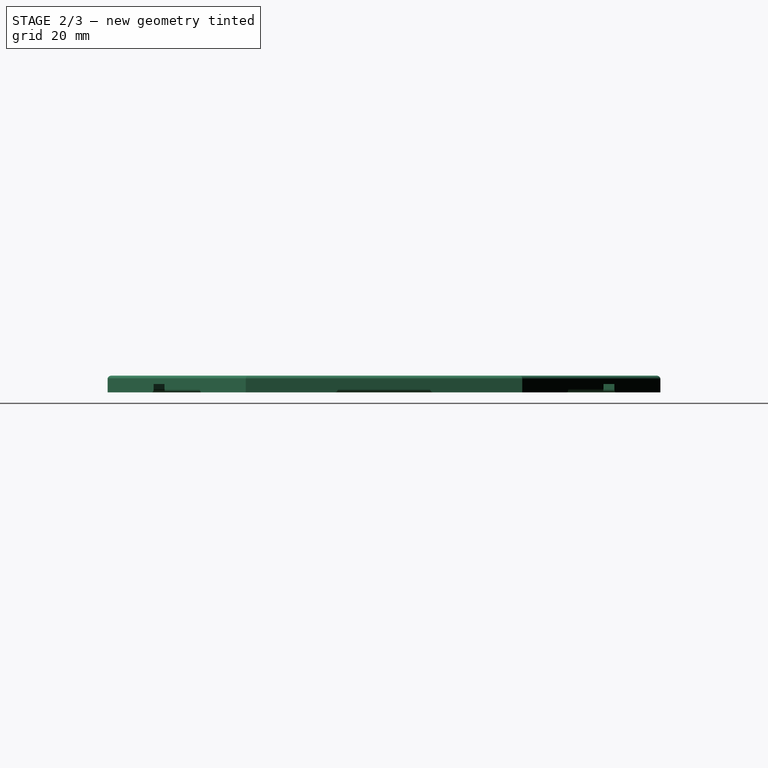
[diagram: stage 2 of 3 — right view after this stage's code; geometry added in this stage tinted green]
FEATURE [PartDesign::Fillet] Fillet
  Base = -> Pocket [Edge10,Edge11,Edge12,Edge15,Edge16,Edge17,Edge20,Edge21,Edge22,Edge36,Edge35,Edge34,Edge32,Edge31,Edge30,Edge27,Edge26,Edge25,Edge118,Edge117,Edge119,Edge120,Edge7,Edge116,Edge129,Edge130,Edge121,Edge122,Edge123,Edge124,Edge125,Edge126,Edge127,Edge128]
  BaseFeature = -> Pocket
  Radius = 0.8
  SupportTransform = false
  UseAllEdges = false
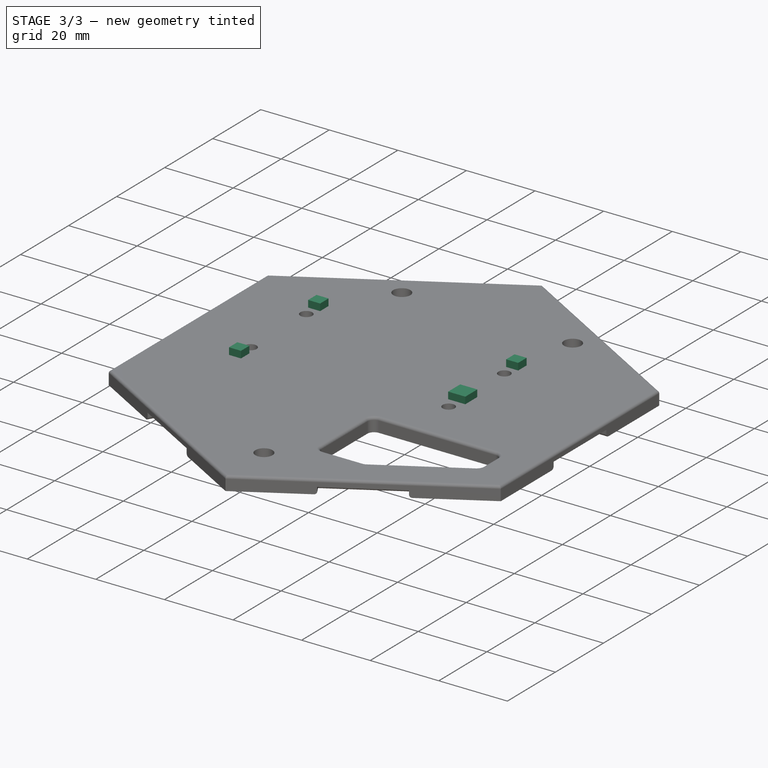
[diagram: stage 3 of 3 — iso view after this stage's code; geometry added in this stage tinted green]
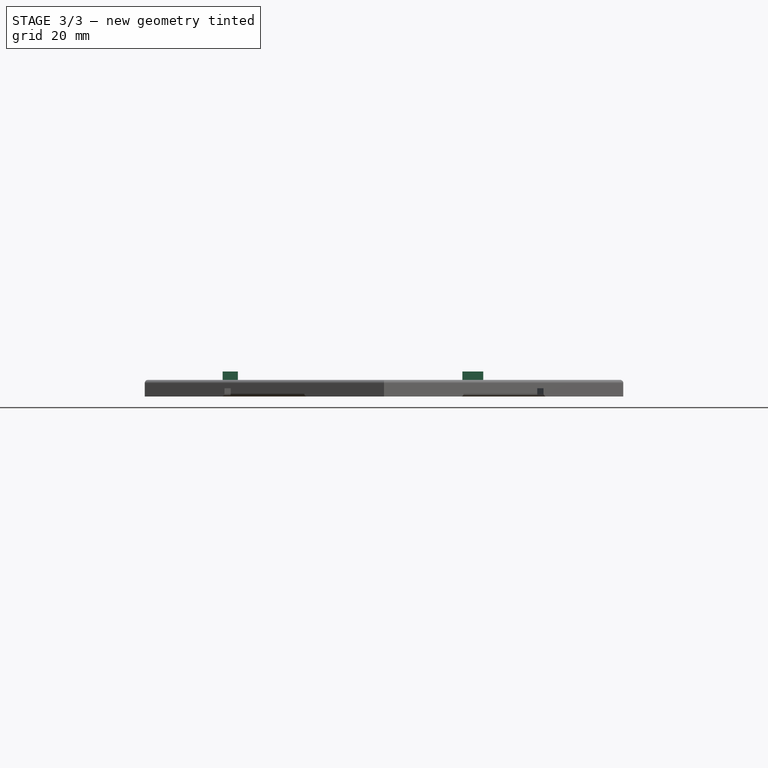
[diagram: stage 3 of 3 — front view after this stage's code; geometry added in this stage tinted green]
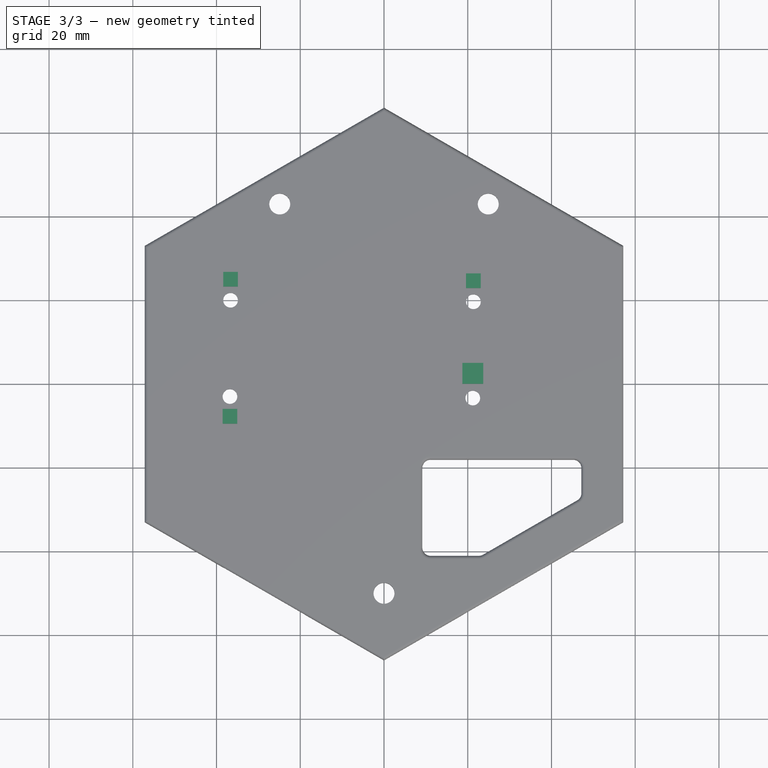
[diagram: stage 3 of 3 — top view after this stage's code; geometry added in this stage tinted green]
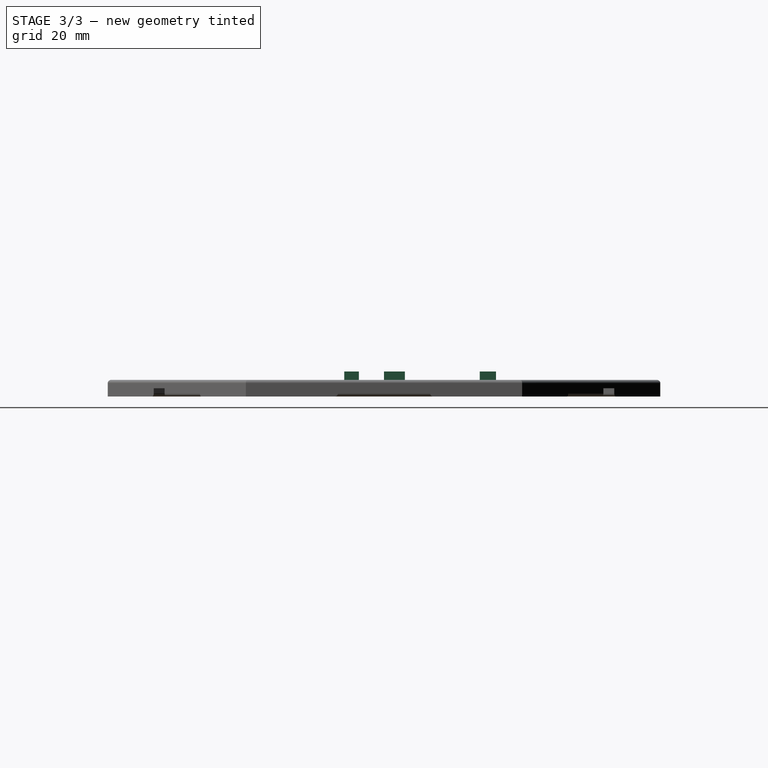
[diagram: stage 3 of 3 — right view after this stage's code; geometry added in this stage tinted green]
FEATURE [Sketcher::SketchObject] Sketch002  label="spacer_pads_sketch"
  ExternalGeometry = -> [Sketch]
  FullyConstrained = true
  MapMode = 5
  Placement = pos=(0,0,4) rot=(0,0,1;0rad)
  Support = -> [Pocket]
  sketch-geometry (33):
    g0: LineSegment StartX=-38.4 StartY=26.7411 StartZ=0 EndX=-34.9 EndY=26.7411 EndZ=0
    g1: LineSegment StartX=-34.9 StartY=26.7411 StartZ=0 EndX=-34.9 EndY=23.2411 EndZ=0
    g2: LineSegment StartX=-34.9 StartY=23.2411 StartZ=0 EndX=-38.4 EndY=23.2411 EndZ=0
    g3: LineSegment StartX=-38.4 StartY=23.2411 StartZ=0 EndX=-38.4 EndY=26.7411 EndZ=0
    g4: LineSegment StartX=-38.4 StartY=26.7411 StartZ=0 EndX=-36.65 EndY=24.9911 EndZ=0
    g5: LineSegment StartX=-36.65 StartY=24.9911 StartZ=0 EndX=-34.9 EndY=23.2411 EndZ=0
    g6: LineSegment StartX=-38.4 StartY=23.2411 StartZ=0 EndX=-36.65 EndY=24.9911 EndZ=0
    g7: LineSegment StartX=19.5989 StartY=26.3811 StartZ=0 EndX=23.0989 EndY=26.3811 EndZ=0
    g8: LineSegment StartX=23.0989 StartY=26.3811 StartZ=0 EndX=23.0989 EndY=22.8811 EndZ=0
    g9: LineSegment StartX=23.0989 StartY=22.8811 StartZ=0 EndX=19.5989 EndY=22.8811 EndZ=0
    g10: LineSegment StartX=19.5989 StartY=22.8811 StartZ=0 EndX=19.5989 EndY=26.3811 EndZ=0
    g11: LineSegment StartX=19.5989 StartY=26.3811 StartZ=0 EndX=21.3489 EndY=24.6311 EndZ=0
    g12: LineSegment StartX=21.3489 StartY=24.6311 StartZ=0 EndX=23.0989 EndY=22.8811 EndZ=0
    g13: LineSegment StartX=21.3489 StartY=24.6311 StartZ=0 EndX=23.0989 EndY=26.3811 EndZ=0
    g14: LineSegment StartX=21.3489 StartY=24.6311 StartZ=0 EndX=21.3489 EndY=19.6311 EndZ=0
    g15: LineSegment StartX=-38.5428 StartY=-6.00842 StartZ=0 EndX=-35.0428 EndY=-6.00842 EndZ=0
    g16: LineSegment StartX=-35.0428 StartY=-6.00842 StartZ=0 EndX=-35.0428 EndY=-9.50842 EndZ=0
    g17: LineSegment StartX=-35.0428 StartY=-9.50842 StartZ=0 EndX=-38.5428 EndY=-9.50842 EndZ=0
    g18: LineSegment StartX=-38.5428 StartY=-9.50842 StartZ=0 EndX=-38.5428 EndY=-6.00842 EndZ=0
    g19: LineSegment StartX=18.7061 StartY=5 StartZ=0 EndX=23.7061 EndY=5 EndZ=0
    g20: LineSegment StartX=23.7061 StartY=5 StartZ=0 EndX=23.7061 EndY=0 EndZ=0
    g21: LineSegment StartX=23.7061 StartY=0 StartZ=0 EndX=18.7061 EndY=0 EndZ=0
    g22: LineSegment StartX=18.7061 StartY=0 StartZ=0 EndX=18.7061 EndY=5 EndZ=0
    g23: LineSegment StartX=-38.5428 StartY=-6.00842 StartZ=0 EndX=-36.7928 EndY=-7.75842 EndZ=0
    g24: LineSegment StartX=-36.7928 StartY=-7.75842 StartZ=0 EndX=-35.0428 EndY=-9.50842 EndZ=0
    g25: LineSegment StartX=-36.7928 StartY=-7.75842 StartZ=0 EndX=-35.0428 EndY=-6.00842 EndZ=0
    g26: LineSegment StartX=18.7061 StartY=0 StartZ=0 EndX=21.2061 EndY=2.5 EndZ=0
    g27: LineSegment StartX=21.2061 StartY=2.5 StartZ=0 EndX=23.7061 EndY=5 EndZ=0
    g28: LineSegment StartX=21.2061 StartY=2.5 StartZ=0 EndX=18.7061 EndY=5 EndZ=0
    g29: LineSegment StartX=21.2061 StartY=-3.36842 StartZ=0 EndX=21.2061 EndY=2.5 EndZ=0
    g30: LineSegment StartX=-38.5428 StartY=-3.00842 StartZ=0 EndX=-38.5428 EndY=-6.00842 EndZ=0
    g31: LineSegment StartX=-36.7928 StartY=-3.00842 StartZ=0 EndX=-38.5428 EndY=-3.00842 EndZ=0
    g32: LineSegment StartX=-36.65 StartY=19.9911 StartZ=0 EndX=-36.65 EndY=24.9911 EndZ=0
  constraints (87):
    c: Coincident(g0,g1)
    c: Coincident(g1,g2)
    c: Coincident(g2,g3)
    c: Coincident(g3,g0)
    c: Horizontal(g0)
    c: Horizontal(g2)
    c: Vertical(g1)
    c: Vertical(g3)
    c: Equal(g1,g2)
    c: Coincident(g4,g0)
    c: Coincident(g5,g4)
    c: Coincident(g5,g1)
    c: Equal(g4,g5)
    c: Coincident(g6,g2)
    c: Coincident(g6,g4)
    c: Equal(g4,g6)
    c: Distance(g1) = 3.5
    c: Coincident(g7,g8)
    c: Coincident(g8,g9)
    c: Coincident(g9,g10)
    c: Coincident(g10,g7)
    c: Horizontal(g7)
    c: Horizontal(g9)
    c: Vertical(g8)
    c: Vertical(g10)
    c: Equal(g10,g7)
    c: Equal(g7,g0)
    c: Coincident(g11,g7)
    c: Coincident(g12,g11)
    c: Coincident(g12,g8)
    c: Coincident(g13,g11)
    c: Coincident(g13,g7)
    c: Equal(g11,g13)
    c: Equal(g13,g12)
    c: Coincident(g14,g11)
    c: Coincident(g14,g-4)
    c: Coincident(g15,g16)
    c: Coincident(g16,g17)
    c: Coincident(g17,g18)
    c: Coincident(g18,g15)
    c: Horizontal(g15)
    c: Horizontal(g17)
    c: Vertical(g16)
    c: Vertical(g18)
    c: Coincident(g19,g20)
    c: Coincident(g20,g21)
    c: Coincident(g21,g22)
    c: Coincident(g22,g19)
    c: Horizontal(g19)
    c: Horizontal(g21)
    c: Vertical(g20)
    c: Vertical(g22)
    c: PointOnObject(g20,g-1)
    c: Coincident(g23,g15)
    c: Coincident(g24,g23)
    c: Coincident(g24,g16)
    c: Coincident(g25,g23)
    c: Coincident(g25,g15)
    c: Coincident(g26,g21)
    c: Coincident(g27,g26)
    c: Coincident(g27,g19)
    c: Coincident(g28,g26)
    c: Coincident(g28,g19)
    c: Equal(g26,g28)
    c: Equal(g28,g27)
    c: Equal(g24,g25)
    c: Equal(g25,g23)
    c: Equal(g17,g18)
    c: Equal(g21,g20)
    c: Coincident(g29,g-5)
    c: Vertical(g29)
    c: Coincident(g26,g29)
    c: Equal(g2,g17)
    c: DistanceY(g22,g22) = 5
    c: PointOnObject(g30,g-6)
    c: Coincident(g30,g15)
    c: Vertical(g30)
    c: DistanceY(g30,g30) = 3
    c: Coincident(g31,g-6)
    c: Coincident(g31,g30)
    c: Horizontal(g31)
    c: Coincident(g32,g4)
    c: Vertical(g32)
    c: Coincident(g32,g-3)
    c: DistanceY(g32,g32) = 5
    c: Vertical(g14)
    c: Equal(g32,g14)
FEATURE [PartDesign::Pad] Pad001  label="spacer_pads"
  BaseFeature = -> Fillet
  Direction = (0,0,1)
  Length = 2
  Length2 = 100
  Profile = -> Sketch002
  ReferenceAxis = -> Sketch002 [N_Axis]
  Type = 0
FEATURE [Part::Part2DObjectPython] ShapeString  # Draft 2D object (typed FeaturePython)
  FontFile = <path>
  MakeFace = true
  Placement = pos=(0,-30,0) rot=(0,1,0;3.14159rad)
  Size = 5
  String = Backplate v2.11
  Tracking = 0
FEATURE [PartDesign::Pocket] Pocket001
  BaseFeature = -> Pad001
  Direction = (-1e-16,0,1)
  Length = 1
  Length2 = 5
  Profile = -> ShapeString
  ReferenceAxis = -> ShapeString [N_Axis]
  Type = 0
FEATURE [PartDesign::Body] Body  label="backplate"
  Group = -> [Sketch,Pad,Sketch001,Pocket,Fillet,Sketch002,Pad001,ShapeString,Pocket001]
  Origin = -> Origin
  Placement = pos=(0,0,0) rot=(0,1,0;3.14159rad)
  Tip = -> Pocket001
note: 1 file-system path scrubbed to <path> (originals preserved in the JSON sidecar)
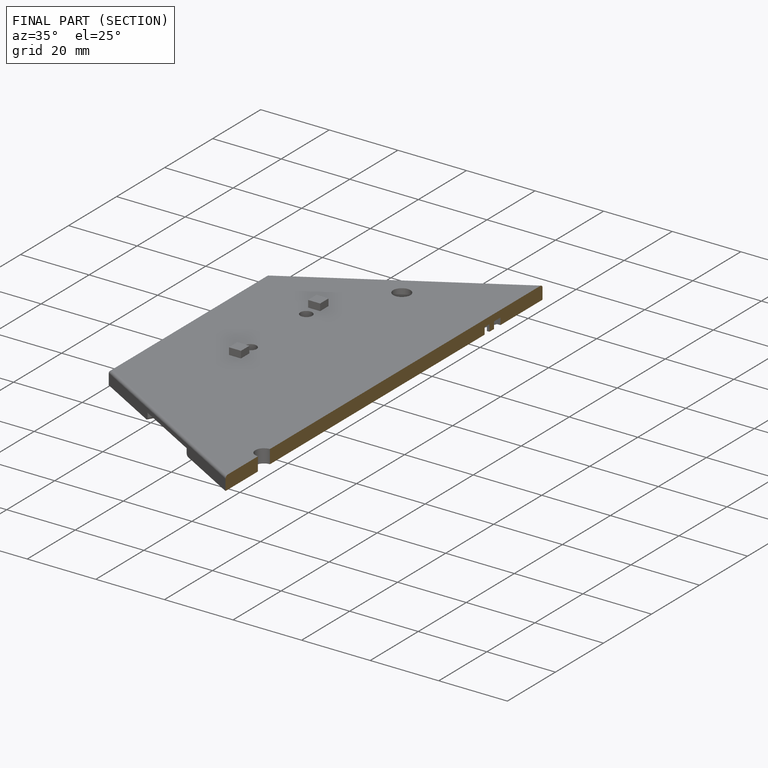
[diagram: finished part — half-section view (interior)]
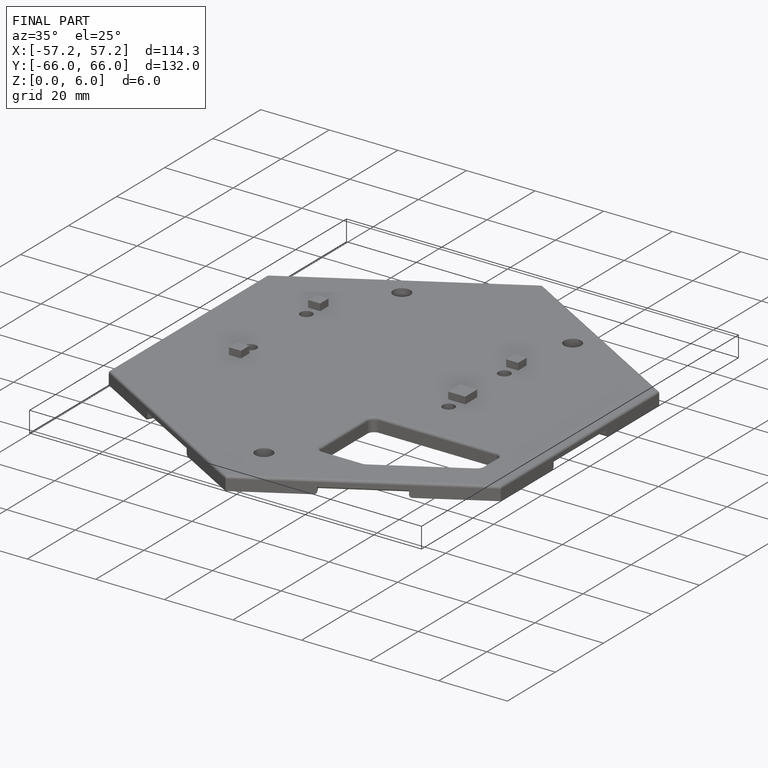
[diagram: finished part — iso view with bounding-box wireframe]
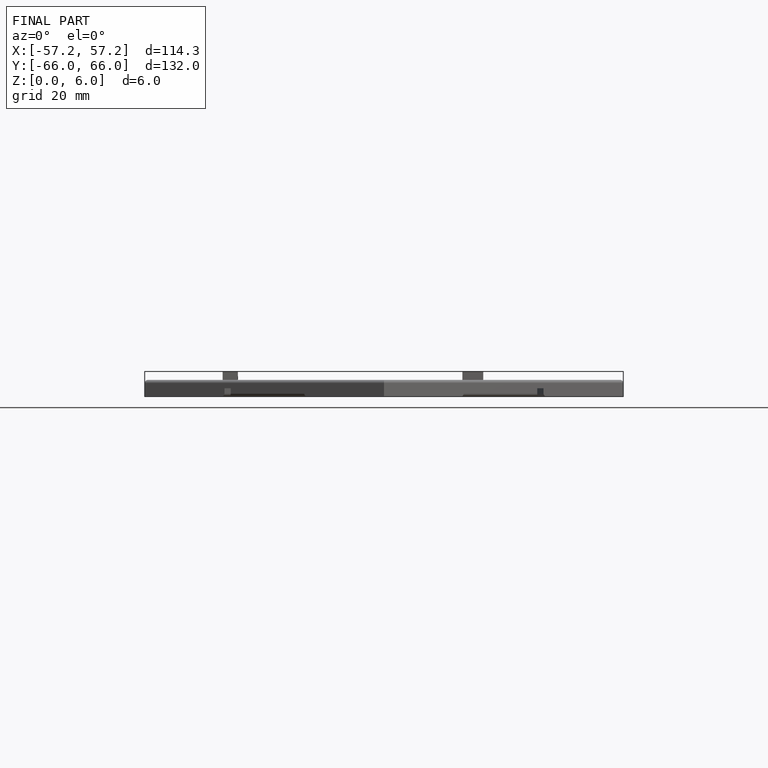
[diagram: finished part — front view with bounding-box wireframe]
